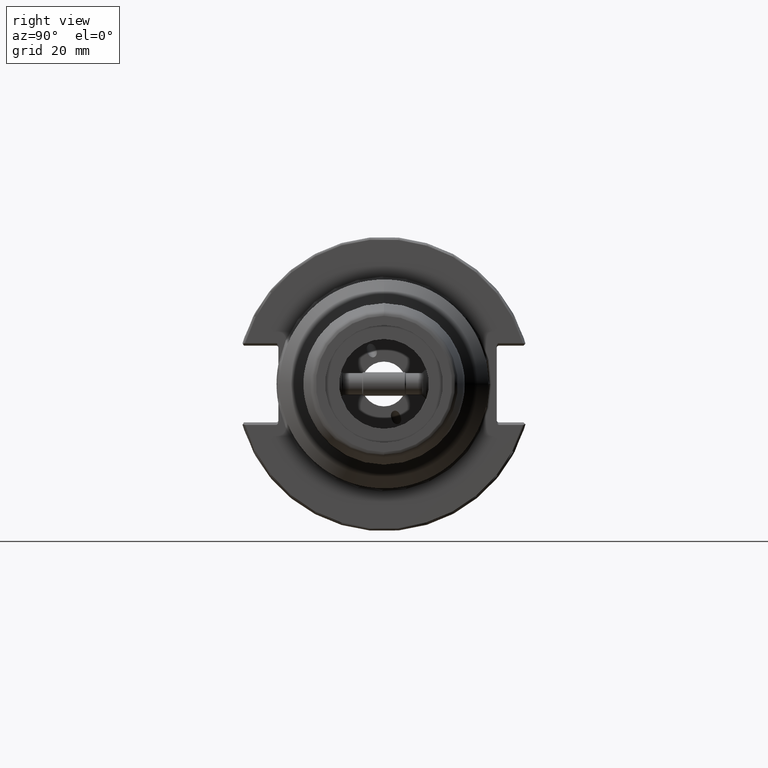
[diagram: clean part render]
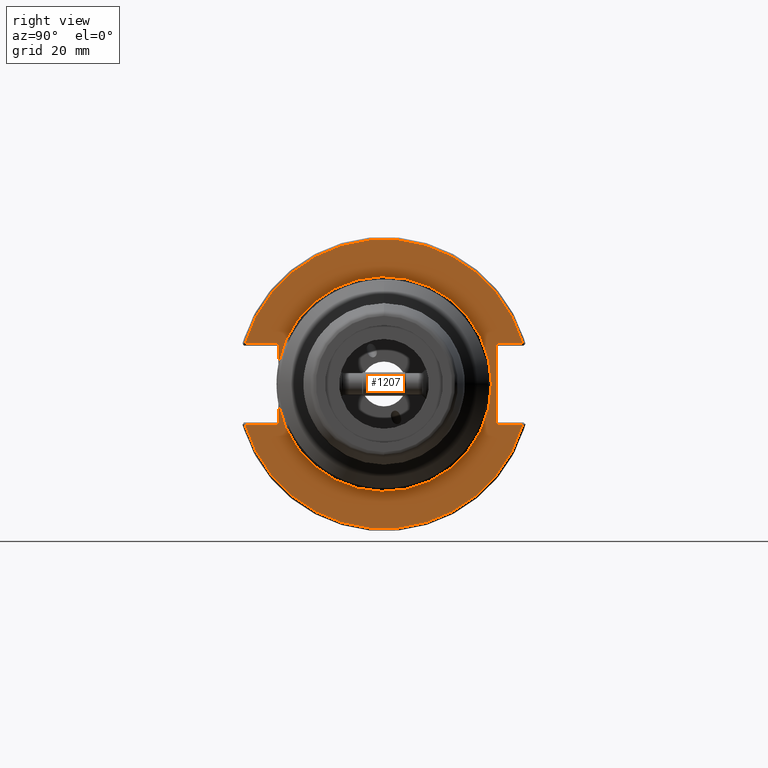
[diagram: same view with one face highlighted and labeled with its STEP entity id]
A machine part, right view. The second image highlights one B-rep face of the part: STEP entity #1207.
In plain terms, the highlighted planar face has unit normal (1, 0, 0).
Its self-contained STEP definition (entity closure, byte-faithful):
#9 = CARTESIAN_POINT ( 'NONE',  ( 18.86606872532234300, -0.02003167494522144900, -2.740953257266259200E-015 ) ) ;
#79 = CARTESIAN_POINT ( 'NONE',  ( 18.86606872532234300, 38.46196832505477700, 13.65000000000000600 ) ) ;
#105 = CARTESIAN_POINT ( 'NONE',  ( 18.86606872532234300, 49.19246832505477600, -2.740953257266259200E-015 ) ) ;
#147 = VERTEX_POINT ( 'NONE', #941 ) ;
#208 = VERTEX_POINT ( 'NONE', #845 ) ;
#209 =( BOUNDED_CURVE ( )  B_SPLINE_CURVE ( 3, ( #5181, #1856, #6867, #3533 ),
 .UNSPECIFIED., .F., .F. ) 
 B_SPLINE_CURVE_WITH_KNOTS ( ( 4, 4 ),
 ( 5.871360896223031200E-020, 1.570796326794907900 ),
 .UNSPECIFIED. ) 
 CURVE ( )  GEOMETRIC_REPRESENTATION_ITEM ( )  RATIONAL_B_SPLINE_CURVE ( ( 1.000000000000000000, 0.8047378541243622700, 0.8047378541243622700, 1.000000000000000000 ) ) 
 REPRESENTATION_ITEM ( '' )  );
#417 =( BOUNDED_CURVE ( )  B_SPLINE_CURVE ( 3, ( #4919, #1595, #6618, #3278 ),
 .UNSPECIFIED., .F., .F. ) 
 B_SPLINE_CURVE_WITH_KNOTS ( ( 4, 4 ),
 ( 1.570796326794885500, 3.141592653589793100 ),
 .UNSPECIFIED. ) 
 CURVE ( )  GEOMETRIC_REPRESENTATION_ITEM ( )  RATIONAL_B_SPLINE_CURVE ( ( 1.000000000000000000, 0.8047378541243622700, 0.8047378541243622700, 1.000000000000000000 ) ) 
 REPRESENTATION_ITEM ( '' )  );
#438 = VERTEX_POINT ( 'NONE', #2554 ) ;
#448 = VERTEX_POINT ( 'NONE', #5961 ) ;
#459 = ORIENTED_EDGE ( 'NONE', *, *, #618, .T. ) ;
#503 = EDGE_CURVE ( 'NONE', #208, #1345, #2751, .T. ) ;
#565 = DIRECTION ( 'NONE',  ( 0.0000000000000000000, 1.000000000000000000, 0.0000000000000000000 ) ) ;
#582 = CARTESIAN_POINT ( 'NONE',  ( 18.86606872532234300, 49.19246832505477600, -13.64999999999999900 ) ) ;
#618 = EDGE_CURVE ( 'NONE', #3104, #438, #1062, .T. ) ;
#845 = CARTESIAN_POINT ( 'NONE',  ( 18.86606872532234300, -36.08203167494522000, -13.65000000000001600 ) ) ;
#874 = VECTOR ( 'NONE', #3005, 1000.000000000000000 ) ;
#891 = VECTOR ( 'NONE', #1580, 1000.000000000000000 ) ;
#909 = CARTESIAN_POINT ( 'NONE',  ( 18.86606872532234300, -36.08203167494522000, 13.65000000000000200 ) ) ;
#941 = CARTESIAN_POINT ( 'NONE',  ( 18.86606872532232900, 37.69996832505477600, -12.57236926547168600 ) ) ;
#1054 = DIRECTION ( 'NONE',  ( 1.000000000000000000, 4.151679104512832300E-020, -0.0000000000000000000 ) ) ;
#1061 = VERTEX_POINT ( 'NONE', #1214 ) ;
#1062 = LINE ( 'NONE', #1305, #874 ) ;
#1126 = ORIENTED_EDGE ( 'NONE', *, *, #503, .T. ) ;
#1207 = ADVANCED_FACE ( 'NONE', ( #3854 ), #3408, .T. ) ;
#1214 = CARTESIAN_POINT ( 'NONE',  ( 18.86606872532234300, -35.32003167494522000, -6.672003072541266500 ) ) ;
#1305 = CARTESIAN_POINT ( 'NONE',  ( 18.86606872532232900, -35.32003167494522000, -2.740953257266259200E-015 ) ) ;
#1345 = VERTEX_POINT ( 'NONE', #4997 ) ;
#1389 = CARTESIAN_POINT ( 'NONE',  ( 18.86606872532234300, -0.02003167494522144900, -2.740953257266259200E-015 ) ) ;
#1424 = ORIENTED_EDGE ( 'NONE', *, *, #2233, .T. ) ;
#1428 = CARTESIAN_POINT ( 'NONE',  ( 18.86606872532234300, 46.42830151635453700, -13.64999999999999900 ) ) ;
#1521 = DIRECTION ( 'NONE',  ( 4.151679104512832300E-020, -1.000000000000000000, -1.876746633829517300E-035 ) ) ;
#1580 = DIRECTION ( 'NONE',  ( -0.0000000000000000000, -0.0000000000000000000, -1.000000000000000000 ) ) ;
#1586 = CIRCLE ( 'NONE', #4422, 48.41249999999998700 ) ;
#1595 = CARTESIAN_POINT ( 'NONE',  ( 18.86606872532234300, -35.32003167494521300, -13.20363073452830300 ) ) ;
#1597 = VERTEX_POINT ( 'NONE', #1428 ) ;
#1695 = CARTESIAN_POINT ( 'NONE',  ( 18.86606872532234300, -0.02003167494522144900, -2.740953257266259200E-015 ) ) ;
#1745 = AXIS2_PLACEMENT_3D ( 'NONE', #1695, #5565, #2247 ) ;
#1762 = DIRECTION ( 'NONE',  ( -0.0000000000000000000, -0.0000000000000000000, -1.000000000000000000 ) ) ;
#1790 = AXIS2_PLACEMENT_3D ( 'NONE', #9, #3905, #565 ) ;
#1852 = VERTEX_POINT ( 'NONE', #5916 ) ;
#1856 = CARTESIAN_POINT ( 'NONE',  ( 18.86606872532234300, -35.63566240947351800, 13.65000000000000600 ) ) ;
#1860 = VERTEX_POINT ( 'NONE', #4801 ) ;
#1906 = CARTESIAN_POINT ( 'NONE',  ( 18.86606872532234300, 46.42830151635453700, 13.65000000000000600 ) ) ;
#1963 = DIRECTION ( 'NONE',  ( 0.0000000000000000000, 1.000000000000000000, 0.0000000000000000000 ) ) ;
#1980 = EDGE_CURVE ( 'NONE', #5410, #448, #5393, .T. ) ;
#2025 = VERTEX_POINT ( 'NONE', #4425 ) ;
#2097 = CARTESIAN_POINT ( 'NONE',  ( 18.86606872532234300, 38.46196832505477700, 13.65000000000000600 ) ) ;
#2233 = EDGE_CURVE ( 'NONE', #1345, #1597, #1586, .T. ) ;
#2247 = DIRECTION ( 'NONE',  ( 0.0000000000000000000, 1.000000000000000000, 0.0000000000000000000 ) ) ;
#2260 = CARTESIAN_POINT ( 'NONE',  ( 18.86606872532234300, 38.46196832505477700, -13.64999999999999900 ) ) ;
#2311 = CARTESIAN_POINT ( 'NONE',  ( 18.86606872532232900, 37.69996832505477600, -2.740953257266259200E-015 ) ) ;
#2386 = LINE ( 'NONE', #2311, #6678 ) ;
#2500 = ORIENTED_EDGE ( 'NONE', *, *, #5621, .T. ) ;
#2554 = CARTESIAN_POINT ( 'NONE',  ( 18.86606872532232900, -35.32003167494522000, 6.672003072541235400 ) ) ;
#2555 = LINE ( 'NONE', #7140, #3876 ) ;
#2751 = LINE ( 'NONE', #5990, #4215 ) ;
#2809 = ORIENTED_EDGE ( 'NONE', *, *, #4314, .T. ) ;
#2818 = CARTESIAN_POINT ( 'NONE',  ( 18.86606872532233900, 37.69996832505476900, -13.20363073452829100 ) ) ;
#2916 = CIRCLE ( 'NONE', #1790, 35.92499999999999700 ) ;
#3005 = DIRECTION ( 'NONE',  ( -0.0000000000000000000, -0.0000000000000000000, -1.000000000000000000 ) ) ;
#3104 = VERTEX_POINT ( 'NONE', #5528 ) ;
#3123 = EDGE_CURVE ( 'NONE', #1061, #1852, #2916, .T. ) ;
#3175 = ORIENTED_EDGE ( 'NONE', *, *, #6001, .T. ) ;
#3278 = CARTESIAN_POINT ( 'NONE',  ( 18.86606872532234300, -36.08203167494522000, -13.65000000000001600 ) ) ;
#3294 = EDGE_CURVE ( 'NONE', #1860, #147, #2386, .T. ) ;
#3408 = PLANE ( 'NONE',  #6439 ) ;
#3418 = VERTEX_POINT ( 'NONE', #909 ) ;
#3452 = VECTOR ( 'NONE', #5038, 1000.000000000000000 ) ;
#3481 = ORIENTED_EDGE ( 'NONE', *, *, #1980, .T. ) ;
#3533 = CARTESIAN_POINT ( 'NONE',  ( 18.86606872532232900, -35.32003167494522000, 12.57236926547169500 ) ) ;
#3714 = CARTESIAN_POINT ( 'NONE',  ( 18.86606872532234300, -35.32003167494522000, 13.65000000000000200 ) ) ;
#3746 = CARTESIAN_POINT ( 'NONE',  ( 18.86606872532232900, 37.69996832505477600, 12.57236926547168000 ) ) ;
#3854 = FACE_OUTER_BOUND ( 'NONE', #5423, .T. ) ;
#3876 = VECTOR ( 'NONE', #6042, 1000.000000000000000 ) ;
#3892 = EDGE_CURVE ( 'NONE', #1852, #438, #4939, .T. ) ;
#3905 = DIRECTION ( 'NONE',  ( 1.000000000000000000, 4.151679104512832300E-020, -0.0000000000000000000 ) ) ;
#3988 = DIRECTION ( 'NONE',  ( -4.151679104512832300E-020, 1.000000000000000000, 0.0000000000000000000 ) ) ;
#4215 = VECTOR ( 'NONE', #1521, 1000.000000000000000 ) ;
#4239 = ORIENTED_EDGE ( 'NONE', *, *, #3892, .F. ) ;
#4314 = EDGE_CURVE ( 'NONE', #1597, #4903, #4929, .T. ) ;
#4335 = CARTESIAN_POINT ( 'NONE',  ( 18.86606872532232900, -35.32003167494522000, -2.740953257266259200E-015 ) ) ;
#4396 = CARTESIAN_POINT ( 'NONE',  ( 18.86606872532234300, -0.02003167494522144900, -2.740953257266259200E-015 ) ) ;
#4422 = AXIS2_PLACEMENT_3D ( 'NONE', #1389, #5282, #1963 ) ;
#4425 = CARTESIAN_POINT ( 'NONE',  ( 18.86606872532232900, -35.32003167494522000, -12.57236926547170500 ) ) ;
#4432 = ORIENTED_EDGE ( 'NONE', *, *, #5754, .T. ) ;
#4459 = ORIENTED_EDGE ( 'NONE', *, *, #6895, .T. ) ;
#4503 = LINE ( 'NONE', #3714, #5816 ) ;
#4801 = CARTESIAN_POINT ( 'NONE',  ( 18.86606872532232900, 37.69996832505477600, 12.57236926547168000 ) ) ;
#4903 = VERTEX_POINT ( 'NONE', #5180 ) ;
#4919 = CARTESIAN_POINT ( 'NONE',  ( 18.86606872532232900, -35.32003167494522000, -12.57236926547170500 ) ) ;
#4929 = LINE ( 'NONE', #582, #3452 ) ;
#4939 = CIRCLE ( 'NONE', #1745, 35.92499999999999700 ) ;
#4954 = DIRECTION ( 'NONE',  ( 0.0000000000000000000, 1.000000000000000000, 0.0000000000000000000 ) ) ;
#4997 = CARTESIAN_POINT ( 'NONE',  ( 18.86606872532234300, -46.46836486624497600, -13.65000000000001600 ) ) ;
#5038 = DIRECTION ( 'NONE',  ( 4.151679104512832300E-020, -1.000000000000000000, -4.691866584573791800E-036 ) ) ;
#5085 = DIRECTION ( 'NONE',  ( 1.000000000000000000, 4.151679104512832300E-020, -0.0000000000000000000 ) ) ;
#5180 = CARTESIAN_POINT ( 'NONE',  ( 18.86606872532234300, 38.46196832505477700, -13.64999999999999900 ) ) ;
#5181 = CARTESIAN_POINT ( 'NONE',  ( 18.86606872532234300, -36.08203167494522000, 13.65000000000000200 ) ) ;
#5206 = VERTEX_POINT ( 'NONE', #79 ) ;
#5282 = DIRECTION ( 'NONE',  ( 1.000000000000000000, 4.151679104512832300E-020, -0.0000000000000000000 ) ) ;
#5333 = LINE ( 'NONE', #4335, #891 ) ;
#5393 = CIRCLE ( 'NONE', #6801, 48.41249999999998700 ) ;
#5410 = VERTEX_POINT ( 'NONE', #1906 ) ;
#5420 = CARTESIAN_POINT ( 'NONE',  ( 18.86606872532234300, 38.01559905958306700, 13.65000000000000400 ) ) ;
#5423 = EDGE_LOOP ( 'NONE', ( #6854, #5671, #6603, #3481, #6908, #4432, #459, #4239, #5652, #3175, #2500, #1126, #1424, #2809, #4459 ) ) ;
#5528 = CARTESIAN_POINT ( 'NONE',  ( 18.86606872532232900, -35.32003167494522000, 12.57236926547169500 ) ) ;
#5565 = DIRECTION ( 'NONE',  ( 1.000000000000000000, 4.151679104512832300E-020, -0.0000000000000000000 ) ) ;
#5582 = CARTESIAN_POINT ( 'NONE',  ( 18.86606872532233900, 38.01559905958306700, -13.65000000000000200 ) ) ;
#5621 = EDGE_CURVE ( 'NONE', #2025, #208, #417, .T. ) ;
#5652 = ORIENTED_EDGE ( 'NONE', *, *, #3123, .F. ) ;
#5671 = ORIENTED_EDGE ( 'NONE', *, *, #6504, .T. ) ;
#5754 = EDGE_CURVE ( 'NONE', #3418, #3104, #209, .T. ) ;
#5816 = VECTOR ( 'NONE', #7057, 1000.000000000000000 ) ;
#5916 = CARTESIAN_POINT ( 'NONE',  ( 18.86606872532233900, 35.90496832505477400, -2.740953257266259200E-015 ) ) ;
#5961 = CARTESIAN_POINT ( 'NONE',  ( 18.86606872532234300, -46.46836486624497600, 13.65000000000000200 ) ) ;
#5984 = CARTESIAN_POINT ( 'NONE',  ( 18.86606872532234300, 37.69996832505476900, 13.20363073452828800 ) ) ;
#5990 = CARTESIAN_POINT ( 'NONE',  ( 18.86606872532234300, -46.87296526485101100, -13.65000000000001600 ) ) ;
#6001 = EDGE_CURVE ( 'NONE', #1061, #2025, #5333, .T. ) ;
#6006 = EDGE_CURVE ( 'NONE', #5206, #5410, #2555, .T. ) ;
#6042 = DIRECTION ( 'NONE',  ( -4.151679104512832300E-020, 1.000000000000000000, 0.0000000000000000000 ) ) ;
#6439 = AXIS2_PLACEMENT_3D ( 'NONE', #105, #5085, #3988 ) ;
#6504 = EDGE_CURVE ( 'NONE', #1860, #5206, #6893, .T. ) ;
#6603 = ORIENTED_EDGE ( 'NONE', *, *, #6006, .T. ) ;
#6618 = CARTESIAN_POINT ( 'NONE',  ( 18.86606872532234300, -35.63566240947351800, -13.65000000000001100 ) ) ;
#6678 = VECTOR ( 'NONE', #1762, 1000.000000000000000 ) ;
#6724 = CARTESIAN_POINT ( 'NONE',  ( 18.86606872532232900, 37.69996832505477600, -12.57236926547168600 ) ) ;
#6774 = EDGE_CURVE ( 'NONE', #448, #3418, #4503, .T. ) ;
#6801 = AXIS2_PLACEMENT_3D ( 'NONE', #4396, #1054, #4954 ) ;
#6854 = ORIENTED_EDGE ( 'NONE', *, *, #3294, .F. ) ;
#6867 = CARTESIAN_POINT ( 'NONE',  ( 18.86606872532234300, -35.32003167494521300, 13.20363073452829600 ) ) ;
#6893 =( BOUNDED_CURVE ( )  B_SPLINE_CURVE ( 3, ( #3746, #5984, #5420, #2097 ),
 .UNSPECIFIED., .F., .F. ) 
 B_SPLINE_CURVE_WITH_KNOTS ( ( 4, 4 ),
 ( 1.570796326794875700, 3.141592653589793100 ),
 .UNSPECIFIED. ) 
 CURVE ( )  GEOMETRIC_REPRESENTATION_ITEM ( )  RATIONAL_B_SPLINE_CURVE ( ( 1.000000000000000000, 0.8047378541243600500, 0.8047378541243600500, 1.000000000000000000 ) ) 
 REPRESENTATION_ITEM ( '' )  );
#6895 = EDGE_CURVE ( 'NONE', #4903, #147, #7098, .T. ) ;
#6908 = ORIENTED_EDGE ( 'NONE', *, *, #6774, .T. ) ;
#7057 = DIRECTION ( 'NONE',  ( -4.151679104512832300E-020, 1.000000000000000000, 4.691866584573793200E-036 ) ) ;
#7098 =( BOUNDED_CURVE ( )  B_SPLINE_CURVE ( 3, ( #2260, #5582, #2818, #6724 ),
 .UNSPECIFIED., .F., .F. ) 
 B_SPLINE_CURVE_WITH_KNOTS ( ( 4, 4 ),
 ( 0.0000000000000000000, 1.570796326794912800 ),
 .UNSPECIFIED. ) 
 CURVE ( )  GEOMETRIC_REPRESENTATION_ITEM ( )  RATIONAL_B_SPLINE_CURVE ( ( 1.000000000000000000, 0.8047378541243610500, 0.8047378541243610500, 1.000000000000000000 ) ) 
 REPRESENTATION_ITEM ( '' )  );
#7140 = CARTESIAN_POINT ( 'NONE',  ( 18.86606872532234300, 49.19246832505477600, 13.65000000000000600 ) ) ;